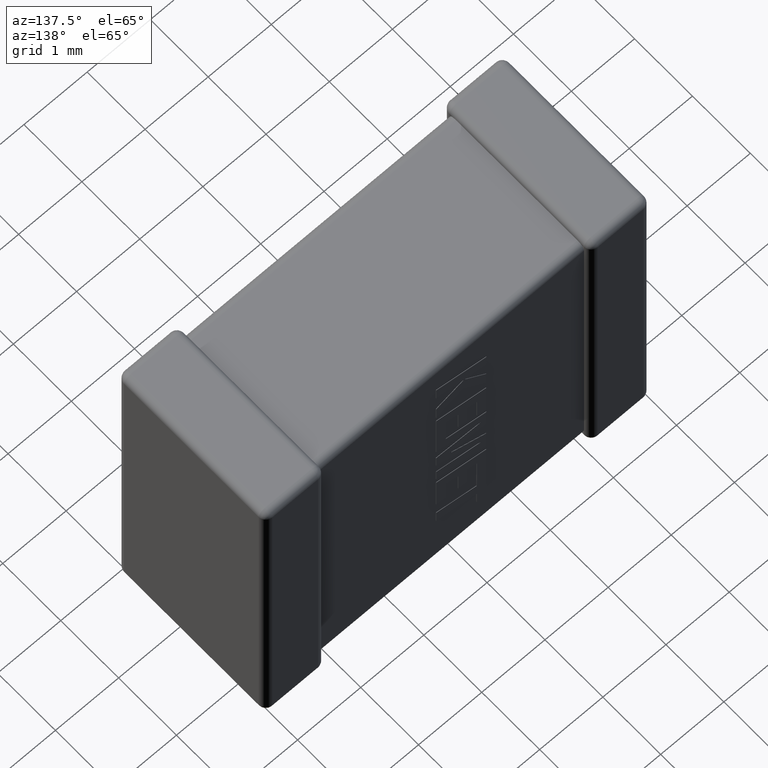
[diagram: clean part render]
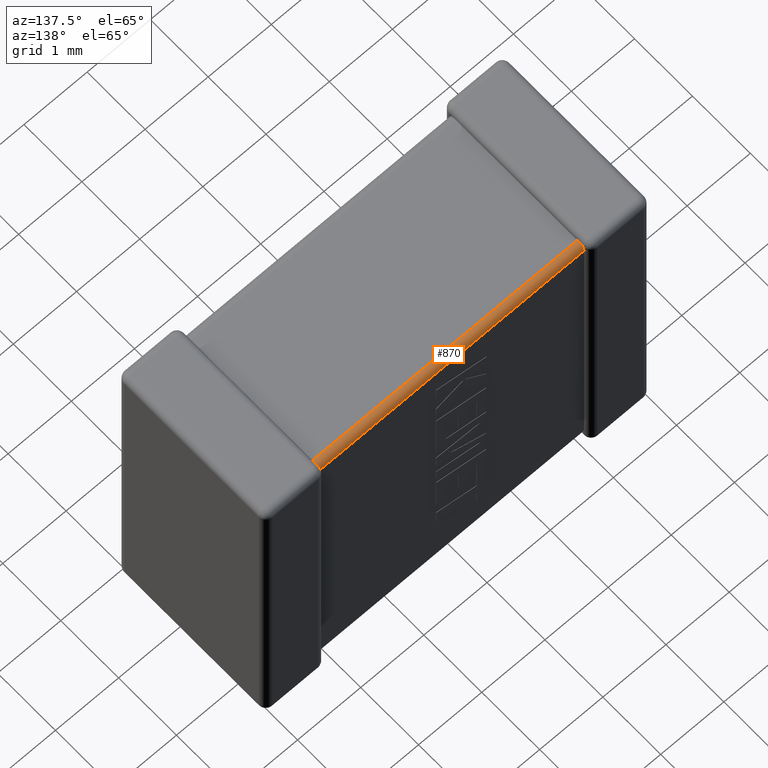
[diagram: same view with one face highlighted and labeled with its STEP entity id]
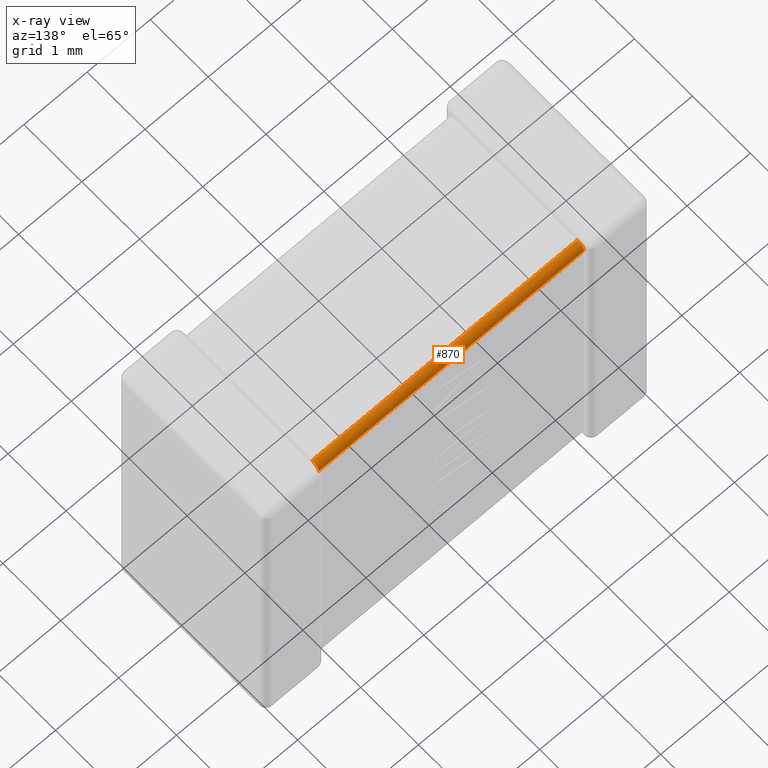
[diagram: x-ray of the same camera — body ghosted, the highlighted face saturated]
A machine part, auxiliary view. The second image highlights one B-rep face of the part: STEP entity #870.
The next image is the same camera in x-ray: the body ghosted, the highlighted face saturated — about 0% of this face is hidden behind the body in this view.
In plain terms, the highlighted cylindrical surface (edge-blend (fillet) strip) has radius 0.1123 mm, axis along (-1, -0, 0).
Its self-contained STEP definition (entity closure, byte-faithful):
#108 = DIRECTION ( 'NONE',  ( -1.000000000000000000, -1.032573497605242347E-16, 0.000000000000000000 ) ) ;
#124 = DIRECTION ( 'NONE',  ( 0.000000000000000000, -1.000000000000000000, 0.000000000000000000 ) ) ;
#224 = VERTEX_POINT ( 'NONE', #4194 ) ;
#251 = CARTESIAN_POINT ( 'NONE',  ( 5.150000000000000355, 2.437680000000000291, -0.2246400000000007835 ) ) ;
#255 = CARTESIAN_POINT ( 'NONE',  ( 5.149997222547606057, 2.337100840322658080, -0.1127816437192390164 ) ) ;
#265 = CARTESIAN_POINT ( 'NONE',  ( 5.154925775900061957, 2.404782233662873914, -0.1452177663371266858 ) ) ;
#273 = CARTESIAN_POINT ( 'NONE',  ( 5.152431037062773278, 2.396638199231571953, -0.1370737319058241976 ) ) ;
#366 = CARTESIAN_POINT ( 'NONE',  ( 5.154925775900061957, 2.404782233662873914, -0.1452177663371266858 ) ) ;
#405 = ORIENTED_EDGE ( 'NONE', *, *, #4136, .F. ) ;
#478 = VERTEX_POINT ( 'NONE', #251 ) ;
#542 = CARTESIAN_POINT ( 'NONE',  ( 0.9499999999999998446, 2.325359999999999872, -0.2246399999999990349 ) ) ;
#572 = B_SPLINE_CURVE_WITH_KNOTS ( 'NONE', 3,
 ( #1695, #1628, #4570, #4516, #1271, #1674, #2688, #3072, #4497, #1548 ),
 .UNSPECIFIED., .F., .F.,
 ( 4, 3, 3, 4 ),
 ( 0.000000000000000000, 3.737793887600300276E-05, 7.483306597327582640E-05, 8.800504568266276654E-05 ),
 .UNSPECIFIED. ) ;
#632 = CARTESIAN_POINT ( 'NONE',  ( 5.150000000000000355, 2.331221478228865607, -0.1123199999999990595 ) ) ;
#636 = CARTESIAN_POINT ( 'NONE',  ( 5.150000000000000355, 2.437680000000000291, -0.2246399999999990349 ) ) ;
#665 = B_SPLINE_CURVE_WITH_KNOTS ( 'NONE', 3,
 ( #1892, #1532, #2585, #3322, #2844, #1864, #710, #1427, #2231, #2491 ),
 .UNSPECIFIED., .F., .F.,
 ( 4, 3, 3, 4 ),
 ( 0.000000000000000000, 3.535348412143885188E-05, 7.052049924266681541E-05, 8.790586026857435953E-05 ),
 .UNSPECIFIED. ) ;
#704 = CYLINDRICAL_SURFACE ( 'NONE', #1583, 0.1123199999999999477 ) ;
#710 = CARTESIAN_POINT ( 'NONE',  ( 0.9499915653225459167, 2.436303520868486228, -0.2071095243275093423 ) ) ;
#870 = ADVANCED_FACE ( 'NONE', ( #3937 ), #704, .T. ) ;
#894 = VERTEX_POINT ( 'NONE', #3029 ) ;
#1014 = CARTESIAN_POINT ( 'NONE',  ( 5.150000000000000355, 2.437680000000000291, -0.2246400000000007835 ) ) ;
#1085 = CARTESIAN_POINT ( 'NONE',  ( 5.150399240127526923, 2.427368716263961890, -0.1760033854232484207 ) ) ;
#1185 = ORIENTED_EDGE ( 'NONE', *, *, #4256, .F. ) ;
#1271 = CARTESIAN_POINT ( 'NONE',  ( 0.9496007598724729437, 2.373996614576750375, -0.1226312837360372110 ) ) ;
#1369 = CARTESIAN_POINT ( 'NONE',  ( 0.9499999999999999556, 2.325359999999999872, -0.1123199999999990872 ) ) ;
#1427 = CARTESIAN_POINT ( 'NONE',  ( 0.9500027774523932544, 2.437218356280760112, -0.2128991596773428252 ) ) ;
#1439 = DIRECTION ( 'NONE',  ( 1.000000000000000000, 1.032573497605242347E-16, -0.000000000000000000 ) ) ;
#1472 = EDGE_LOOP ( 'NONE', ( #405, #4204, #2573, #1185, #4420, #2363 ) ) ;
#1532 = CARTESIAN_POINT ( 'NONE',  ( 0.9475689629372262557, 2.412926268094175875, -0.1533618007684292850 ) ) ;
#1548 = CARTESIAN_POINT ( 'NONE',  ( 0.9450742240999385757, 2.404782233662873470, -0.1452177663371267136 ) ) ;
#1583 = AXIS2_PLACEMENT_3D ( 'NONE', #542, #108, #124 ) ;
#1628 = CARTESIAN_POINT ( 'NONE',  ( 0.9499999999999999556, 2.337819312958659967, -0.1123199999999990872 ) ) ;
#1674 = CARTESIAN_POINT ( 'NONE',  ( 0.9490570754601955761, 2.385259863643314215, -0.1288250177456410350 ) ) ;
#1695 = CARTESIAN_POINT ( 'NONE',  ( 0.9499999999999999556, 2.325359999999999872, -0.1123199999999990872 ) ) ;
#1749 = VERTEX_POINT ( 'NONE', #4599 ) ;
#1864 = CARTESIAN_POINT ( 'NONE',  ( 0.9499691003102255227, 2.434470524900062216, -0.1955092100933740473 ) ) ;
#1892 = CARTESIAN_POINT ( 'NONE',  ( 0.9450742240999385757, 2.404782233662873470, -0.1452177663371267136 ) ) ;
#1960 = B_SPLINE_CURVE_WITH_KNOTS ( 'NONE', 3,
 ( #2079, #273, #3136, #2824, #4221, #4288, #2055, #255, #632, #4611 ),
 .UNSPECIFIED., .F., .F.,
 ( 4, 3, 3, 4 ),
 ( 0.000000000000000000, 3.535348412143768637E-05, 7.052049924266487739E-05, 8.790586026857464413E-05 ),
 .UNSPECIFIED. ) ;
#2055 = CARTESIAN_POINT ( 'NONE',  ( 5.150008434677453728, 2.342890475672492645, -0.1136964791315131923 ) ) ;
#2070 = EDGE_CURVE ( 'NONE', #224, #3210, #2501, .T. ) ;
#2079 = CARTESIAN_POINT ( 'NONE',  ( 5.154925775900061957, 2.404782233662873914, -0.1452177663371266858 ) ) ;
#2231 = CARTESIAN_POINT ( 'NONE',  ( 0.9499999999999999556, 2.437679999999999847, -0.2187785217711349650 ) ) ;
#2267 = EDGE_CURVE ( 'NONE', #894, #478, #2829, .T. ) ;
#2363 = ORIENTED_EDGE ( 'NONE', *, *, #3839, .F. ) ;
#2426 = CARTESIAN_POINT ( 'NONE',  ( 5.153984155148902957, 2.407856139314829669, -0.1482916719885586376 ) ) ;
#2474 = CARTESIAN_POINT ( 'NONE',  ( 5.153231340801570859, 2.410786387578709000, -0.1515815489451593501 ) ) ;
#2491 = CARTESIAN_POINT ( 'NONE',  ( 0.9499999999999998446, 2.437679999999999847, -0.2246400000000007835 ) ) ;
#2501 = LINE ( 'NONE', #2828, #3830 ) ;
#2573 = ORIENTED_EDGE ( 'NONE', *, *, #3453, .F. ) ;
#2585 = CARTESIAN_POINT ( 'NONE',  ( 0.9487412343930137215, 2.420069581109935530, -0.1631224660761806666 ) ) ;
#2688 = CARTESIAN_POINT ( 'NONE',  ( 0.9473702207239186324, 2.394959421310642433, -0.1364827373767546481 ) ) ;
#2824 = CARTESIAN_POINT ( 'NONE',  ( 5.150671414421466920, 2.376392684038424630, -0.1245827785722861819 ) ) ;
#2828 = CARTESIAN_POINT ( 'NONE',  ( 0.9499999999999999556, 2.325359999999999872, -0.1123199999999990872 ) ) ;
#2829 = LINE ( 'NONE', #636, #3296 ) ;
#2844 = CARTESIAN_POINT ( 'NONE',  ( 0.9499139314811476664, 2.430746604300921820, -0.1840563693920446720 ) ) ;
#3029 = CARTESIAN_POINT ( 'NONE',  ( 0.9499999999999998446, 2.437679999999999847, -0.2246400000000007835 ) ) ;
#3072 = CARTESIAN_POINT ( 'NONE',  ( 0.9467686591984301181, 2.398418451054840084, -0.1392136124212909887 ) ) ;
#3136 = CARTESIAN_POINT ( 'NONE',  ( 5.151258765606986145, 2.386877533923820405, -0.1299304188900646528 ) ) ;
#3210 = VERTEX_POINT ( 'NONE', #1369 ) ;
#3296 = VECTOR ( 'NONE', #1439, 1000.000000000000000 ) ;
#3322 = CARTESIAN_POINT ( 'NONE',  ( 0.9493285855785332794, 2.425417221427713876, -0.1736073159615769412 ) ) ;
#3453 = EDGE_CURVE ( 'NONE', #3941, #224, #1960, .T. ) ;
#3540 = CARTESIAN_POINT ( 'NONE',  ( 5.150172311762158728, 2.431460802068762916, -0.1877834917502306522 ) ) ;
#3830 = VECTOR ( 'NONE', #4293, 1000.000000000000000 ) ;
#3839 = EDGE_CURVE ( 'NONE', #1749, #894, #665, .T. ) ;
#3937 = FACE_OUTER_BOUND ( 'NONE', #1472, .T. ) ;
#3941 = VERTEX_POINT ( 'NONE', #265 ) ;
#4008 = B_SPLINE_CURVE_WITH_KNOTS ( 'NONE', 3,
 ( #1014, #4319, #4676, #3540, #1085, #4264, #4635, #2474, #2426, #366 ),
 .UNSPECIFIED., .F., .F.,
 ( 4, 3, 3, 4 ),
 ( 1.735570302229820823E-18, 3.737793887600302986E-05, 7.483306597327550114E-05, 8.800504568266055748E-05 ),
 .UNSPECIFIED. ) ;
#4136 = EDGE_CURVE ( 'NONE', #3210, #1749, #572, .T. ) ;
#4194 = CARTESIAN_POINT ( 'NONE',  ( 5.150000000000000355, 2.325360000000000316, -0.1123199999999990872 ) ) ;
#4204 = ORIENTED_EDGE ( 'NONE', *, *, #2070, .F. ) ;
#4221 = CARTESIAN_POINT ( 'NONE',  ( 5.150086068518851867, 2.365943630607957093, -0.1192533956990778771 ) ) ;
#4256 = EDGE_CURVE ( 'NONE', #478, #3941, #4008, .T. ) ;
#4264 = CARTESIAN_POINT ( 'NONE',  ( 5.150942924539804402, 2.421174982254358454, -0.1647401363566846910 ) ) ;
#4288 = CARTESIAN_POINT ( 'NONE',  ( 5.150030899689774344, 2.354490789906627857, -0.1155294750999378700 ) ) ;
#4293 = DIRECTION ( 'NONE',  ( -1.000000000000000000, -1.032573497605242347E-16, -0.000000000000000000 ) ) ;
#4319 = CARTESIAN_POINT ( 'NONE',  ( 5.150000000000000355, 2.437680000000000291, -0.2121806870413389112 ) ) ;
#4420 = ORIENTED_EDGE ( 'NONE', *, *, #2267, .F. ) ;
#4497 = CARTESIAN_POINT ( 'NONE',  ( 0.9460158448510976870, 2.401708328011441296, -0.1421438606851707920 ) ) ;
#4516 = CARTESIAN_POINT ( 'NONE',  ( 0.9498276882378412500, 2.362216508249768143, -0.1185391979312363231 ) ) ;
#4570 = CARTESIAN_POINT ( 'NONE',  ( 0.9500543735329199935, 2.350449019974529818, -0.1144514952914930106 ) ) ;
#4599 = CARTESIAN_POINT ( 'NONE',  ( 0.9450742240999385757, 2.404782233662873470, -0.1452177663371267136 ) ) ;
#4611 = CARTESIAN_POINT ( 'NONE',  ( 5.150000000000000355, 2.325360000000000316, -0.1123199999999990872 ) ) ;
#4635 = CARTESIAN_POINT ( 'NONE',  ( 5.152629779276082012, 2.413517262623244619, -0.1550405786893564453 ) ) ;
#4676 = CARTESIAN_POINT ( 'NONE',  ( 5.149945626467078874, 2.435548504708506368, -0.1995509800254687827 ) ) ;